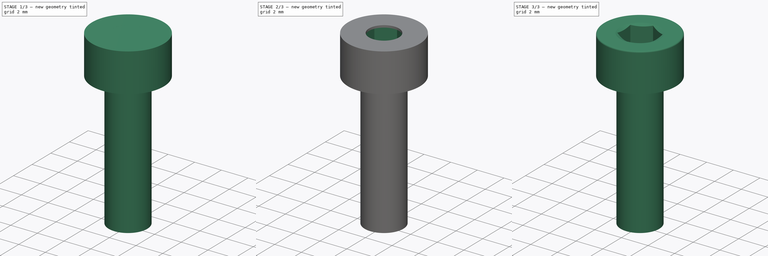
[diagram: build sequence overview — one tinted view per stage of 3, left to right]
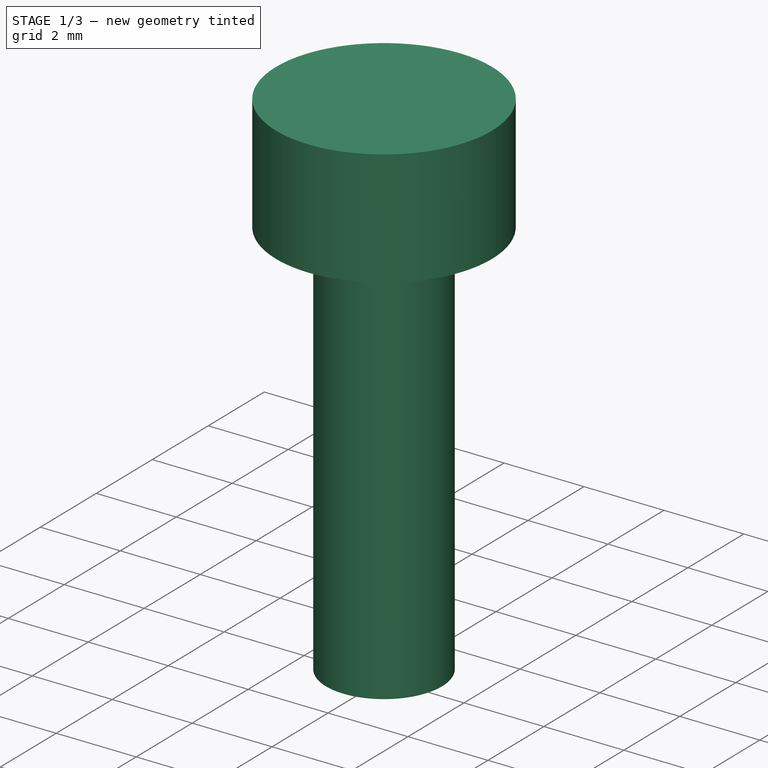
[diagram: stage 1 of 3 — iso view after this stage's code; geometry added in this stage tinted green]
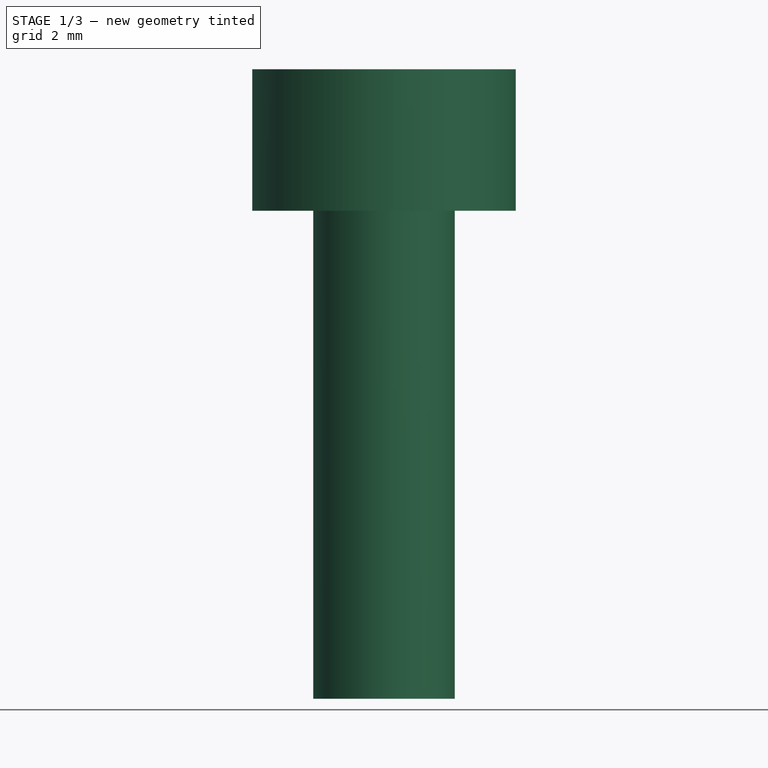
[diagram: stage 1 of 3 — front view after this stage's code; geometry added in this stage tinted green]
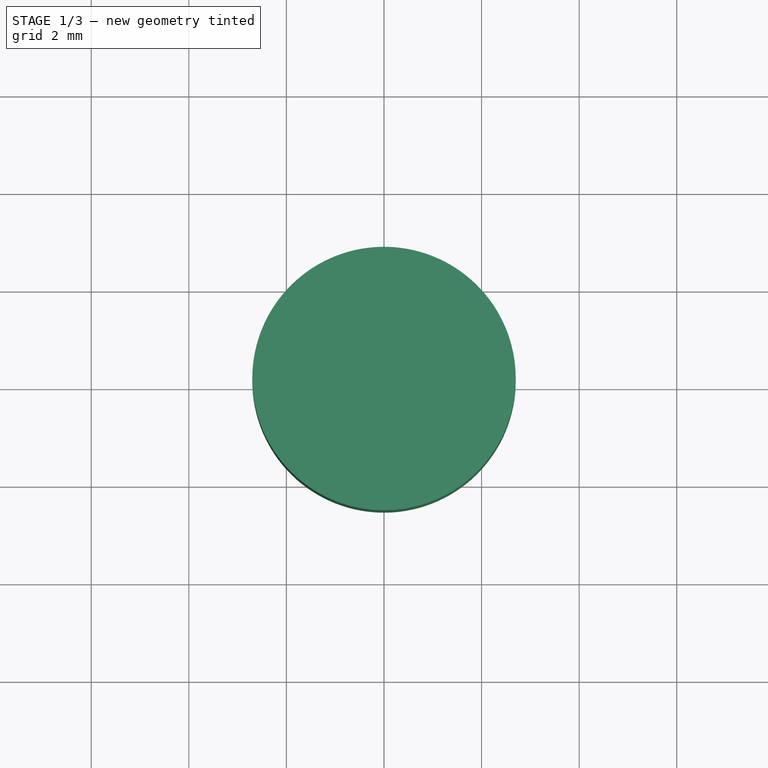
[diagram: stage 1 of 3 — top view after this stage's code; geometry added in this stage tinted green]
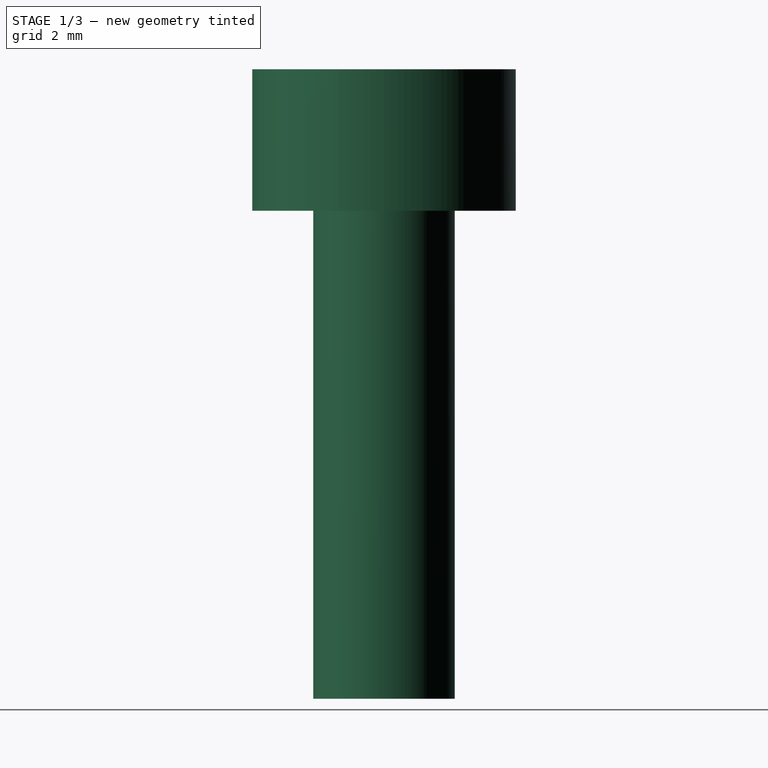
[diagram: stage 1 of 3 — right view after this stage's code; geometry added in this stage tinted green]
FCSTD DOCUMENT  (FreeCAD 0.14R3702 (Git))
Label: M3x10-cylinder-hex-head
License: CC-BY 3.0
LicenseURL: http://creativecommons.org/licenses/by/3.0/
objects: Sketcher::SketchObject×3, PartDesign::Revolution×2, PartDesign::Pocket×1, Part::Cut×1, Part::Fillet×1, Part::Feature×1
note: 12 computed .brp shape members not serialized (recipe doc carries the construction recipe); baked Part::Feature solids carry a one-line shape summary decoded from their .brp

FEATURE [Sketcher::SketchObject] Sketch  label="bolt-body-sketch"
  Placement = pos=(0,0,0) rot=(1,0,0;1.5708rad)
  sketch-geometry (6):
    g0: LineSegment StartX=0 StartY=0 StartZ=0 EndX=1.45 EndY=0 EndZ=0
    g1: LineSegment StartX=1.45 StartY=0 StartZ=0 EndX=1.45 EndY=10 EndZ=0
    g2: LineSegment StartX=1.45 StartY=10 StartZ=0 EndX=2.7 EndY=10 EndZ=0
    g3: LineSegment StartX=2.7 StartY=10 StartZ=0 EndX=2.7 EndY=12.9 EndZ=0
    g4: LineSegment StartX=2.7 StartY=12.9 StartZ=0 EndX=0 EndY=12.9 EndZ=0
    g5: LineSegment StartX=0 StartY=12.9 StartZ=0 EndX=0 EndY=0 EndZ=0
  constraints (17):
    c: Horizontal(g0)
    c: Coincident(g0,g1)
    c: Vertical(g1)
    c: Coincident(g1,g2)
    c: Horizontal(g2)
    c: Coincident(g2,g3)
    c: Vertical(g3)
    c: Coincident(g3,g4)
    c: Horizontal(g4)
    c: Coincident(g4,g5)
    c: Coincident(g5,g0)
    c: Vertical(g5)
    c: Coincident(g0,g-1)
    c: DistanceY(g5) = -12.9
    c: DistanceY(g3) = 2.9
    c: DistanceX(g0) = 1.45
    c: DistanceX(g4) = -2.7
FEATURE [PartDesign::Revolution] Revolution  label="bolt-body"
  Angle = 360
  Axis = (0,0,1)
  Base = (0,0,0)
  Placement = pos=(0,0,0) rot=(1,0,0;1.5708rad)
  ReferenceAxis = -> Sketch [V_Axis]
  Reversed = true
  Sketch = -> Sketch
FEATURE [Sketcher::SketchObject] Sketch002
  Placement = pos=(0,0,0) rot=(0.57735,0.57735,0.57735;2.0944rad)
  sketch-geometry (3):
    g0: LineSegment StartX=1.12763 StartY=12.7371 StartZ=0 EndX=1.50189 EndY=12.9005 EndZ=0
    g1: LineSegment StartX=1.50189 StartY=12.9005 StartZ=0 EndX=1.12763 EndY=12.9005 EndZ=0
    g2: LineSegment StartX=1.12763 StartY=12.9005 StartZ=0 EndX=1.12763 EndY=12.7371 EndZ=0
  constraints (5):
    c: Coincident(g1,g0)
    c: Horizontal(g1)
    c: Coincident(g2,g1)
    c: Vertical(g2)
    c: Coincident(g0,g2)
FEATURE [PartDesign::Revolution] Revolution001
  Angle = 360
  Axis = (0,0,1)
  Base = (0,0,0)
  Placement = pos=(0,0,0) rot=(0.57735,0.57735,0.57735;2.0944rad)
  ReferenceAxis = -> Sketch002 [V_Axis]
  Reversed = true
  Sketch = -> Sketch002
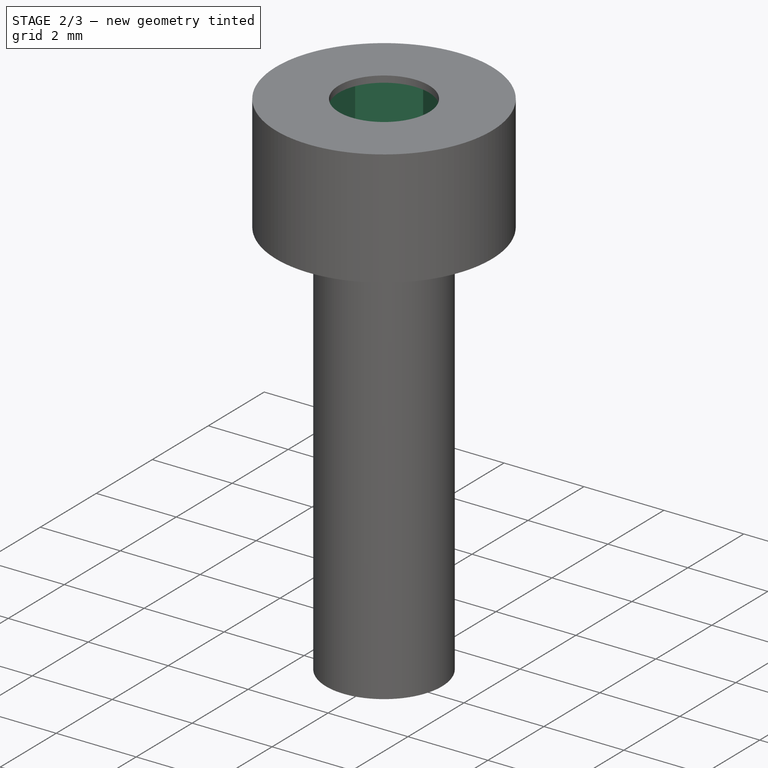
[diagram: stage 2 of 3 — iso view after this stage's code; geometry added in this stage tinted green]
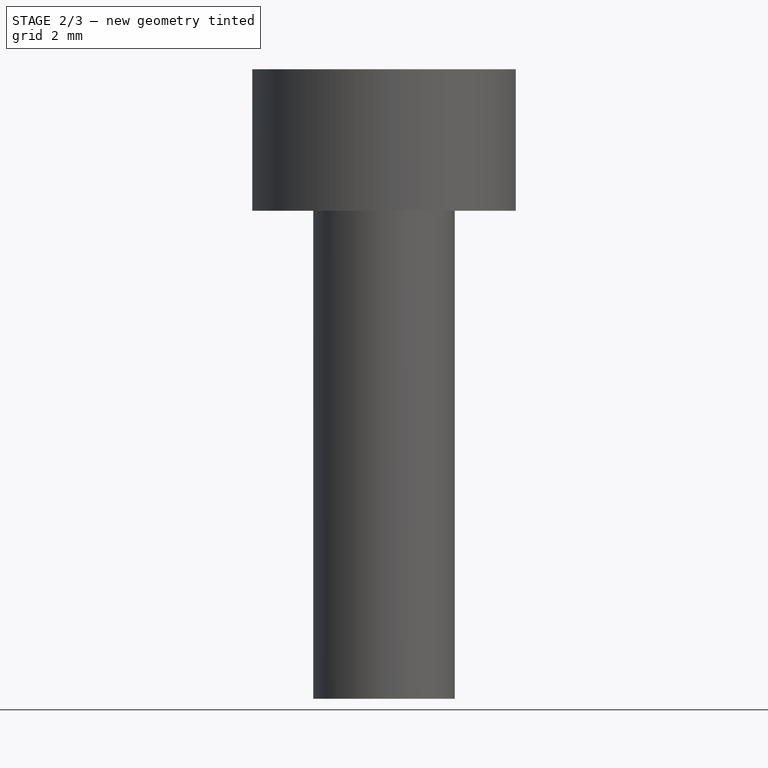
[diagram: stage 2 of 3 — front view after this stage's code; geometry added in this stage tinted green]
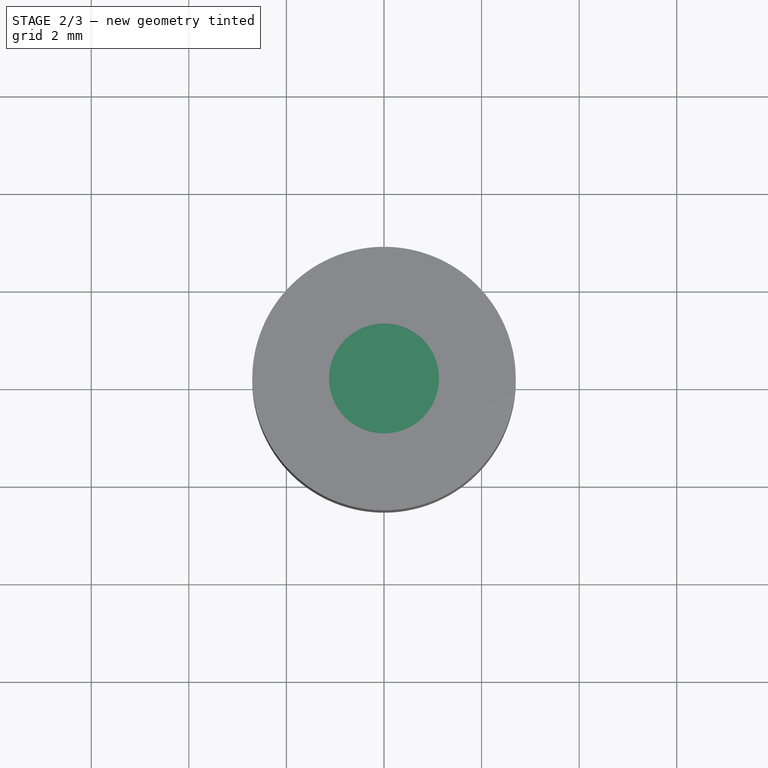
[diagram: stage 2 of 3 — top view after this stage's code; geometry added in this stage tinted green]
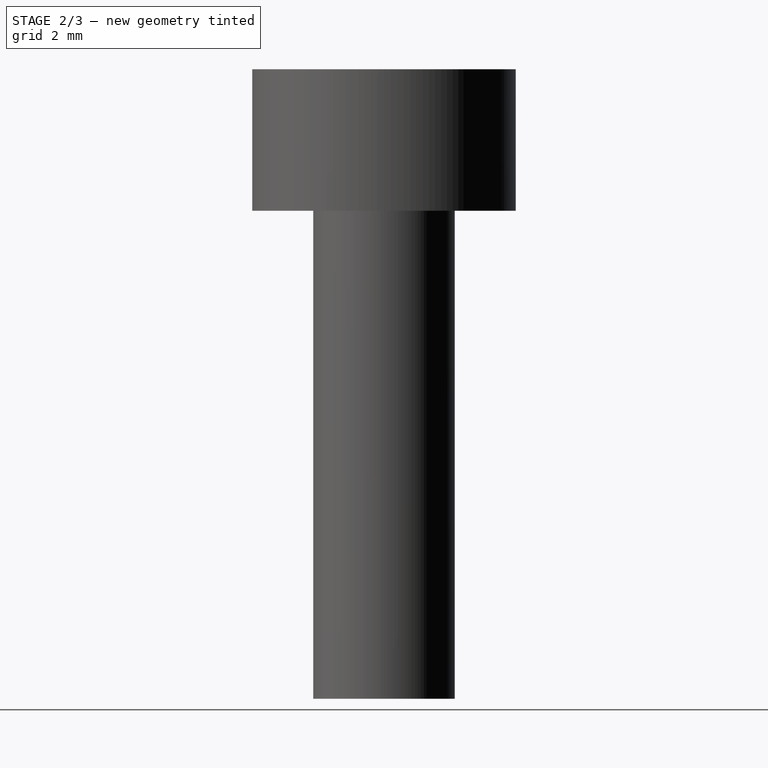
[diagram: stage 2 of 3 — right view after this stage's code; geometry added in this stage tinted green]
FEATURE [Sketcher::SketchObject] Sketch001  label="hex-sketch"
  Placement = pos=(0,0,12.9) rot=(0,0,1;3.14159rad)
  Support = -> Revolution [Face5]
  sketch-geometry (7):
    g0: LineSegment StartX=-1.21244 StartY=0.7 StartZ=0 EndX=-1.21244 EndY=-0.7 EndZ=0
    g1: LineSegment StartX=-1.21244 StartY=0.7 StartZ=0 EndX=0 EndY=1.4 EndZ=0
    g2: LineSegment StartX=-1.21244 StartY=-0.7 StartZ=0 EndX=0 EndY=-1.4 EndZ=0
    g3: LineSegment [constr] StartX=-1.21244 StartY=0.7 StartZ=0 EndX=0 EndY=0 EndZ=0
    g4: LineSegment StartX=0 StartY=1.4 StartZ=0 EndX=1.21244 EndY=0.7 EndZ=0
    g5: LineSegment StartX=1.21244 StartY=0.7 StartZ=0 EndX=1.21244 EndY=-0.7 EndZ=0
    g6: LineSegment StartX=1.21244 StartY=-0.7 StartZ=0 EndX=0 EndY=-1.4 EndZ=0
  constraints (18):
    c: PointOnObject(g1,g-2)
    c: Coincident(g0,g1)
    c: Coincident(g0,g2)
    c: PointOnObject(g2,g-2)
    c: Symmetric(g0,g0,g-1)
    c: Symmetric(g1,g2,g-1)
    c: Coincident(g3,g-1)
    c: Coincident(g3,g0)
    c: Angle(g-2,g3) = 1.0472
    c: Equal(g0,g1)
    c: Distance(g3) = 1.4
    c: Coincident(g4,g5)
    c: Vertical(g5)
    c: Coincident(g5,g6)
    c: Coincident(g4,g1)
    c: Coincident(g2,g6)
    c: Symmetric(g4,g0,g-2)
    c: Symmetric(g5,g0,g-2)
FEATURE [PartDesign::Pocket] Pocket  label="hex"
  Length = 1.8
  Placement = pos=(0,0,0) rot=(1,0,0;1.5708rad)
  Sketch = -> Sketch001
  Type = 0
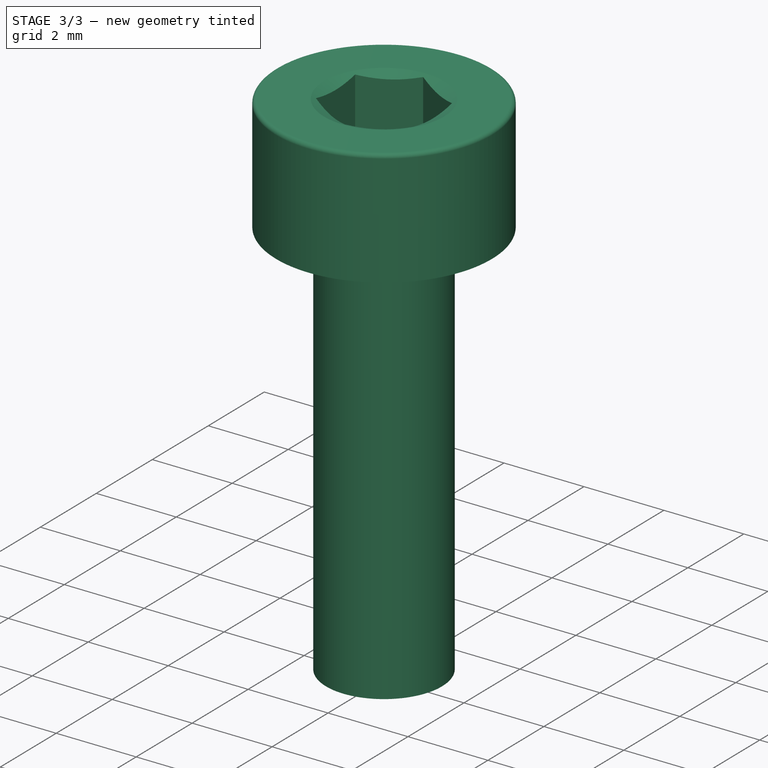
[diagram: stage 3 of 3 — iso view after this stage's code; geometry added in this stage tinted green]
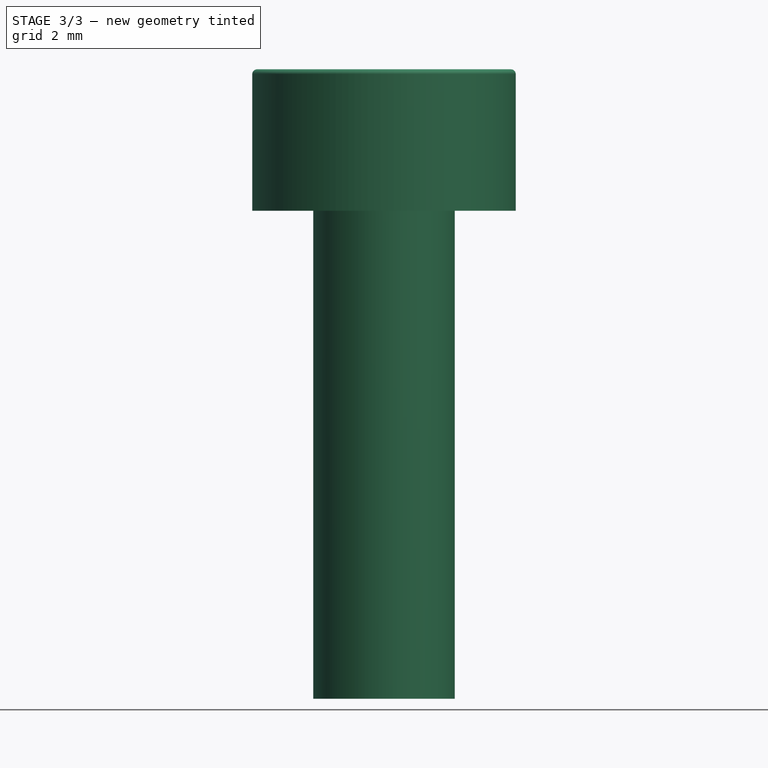
[diagram: stage 3 of 3 — front view after this stage's code; geometry added in this stage tinted green]
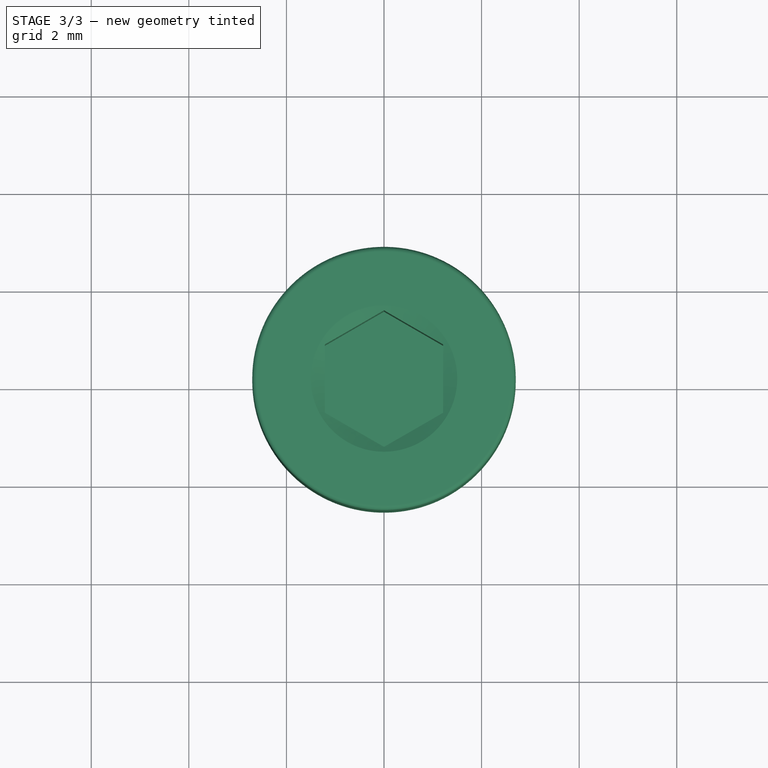
[diagram: stage 3 of 3 — top view after this stage's code; geometry added in this stage tinted green]
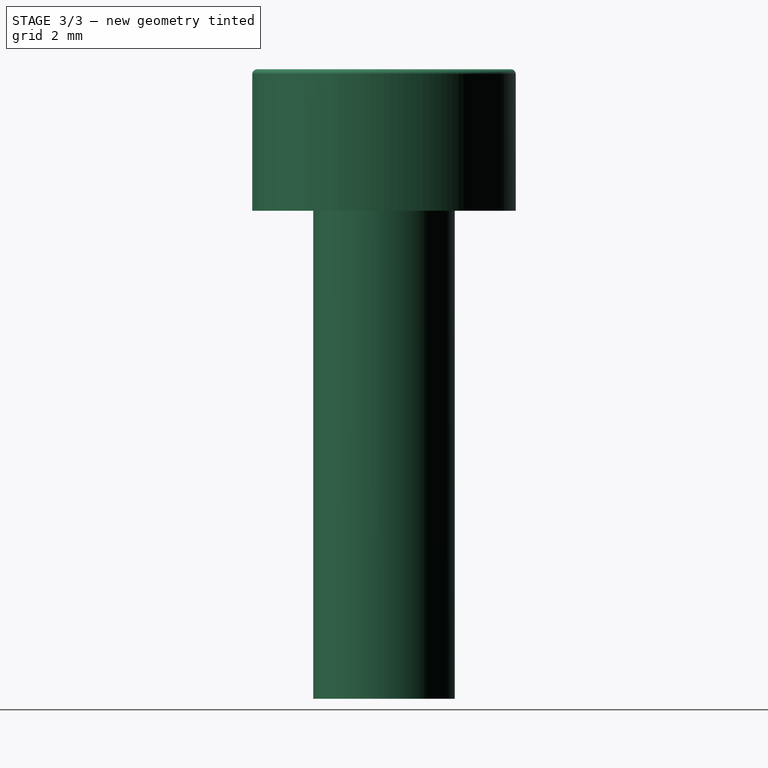
[diagram: stage 3 of 3 — right view after this stage's code; geometry added in this stage tinted green]
FEATURE [Part::Cut] Cut  label="bolt-1"
  Base = -> Pocket
  Tool = -> Revolution001
FEATURE [Part::Fillet] Fillet  label="bolt-2"
  Base = -> Cut
  Edges = 1 edges r=0.1: [Edge5]
FEATURE [Part::Feature] Fillet001  label="M3x10-cyl-hex-bolt-final"
  shape: bbox 5.845 x 5.845 x 12.9 mm, 14 faces (baked)
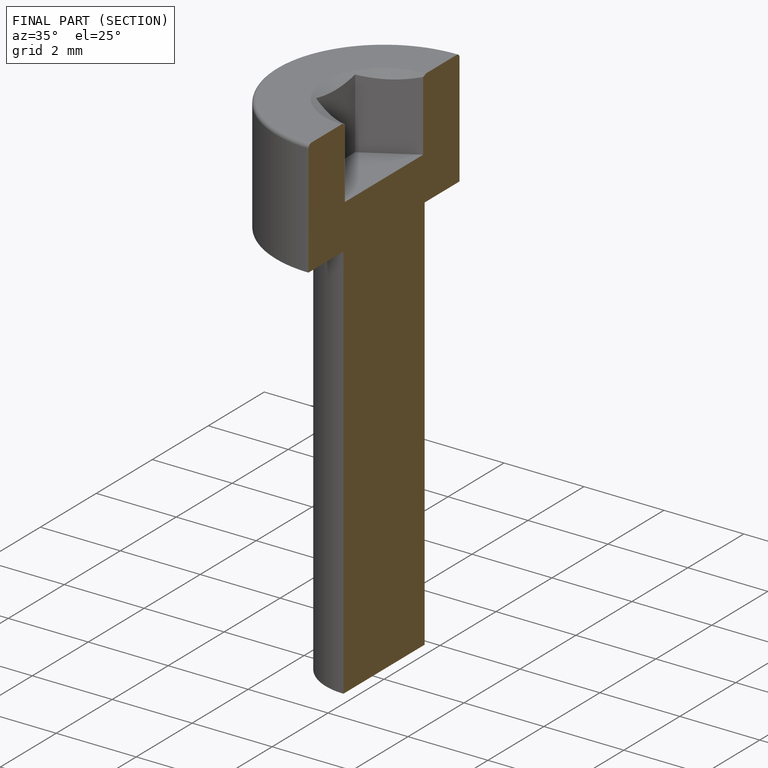
[diagram: finished part — half-section view (interior)]
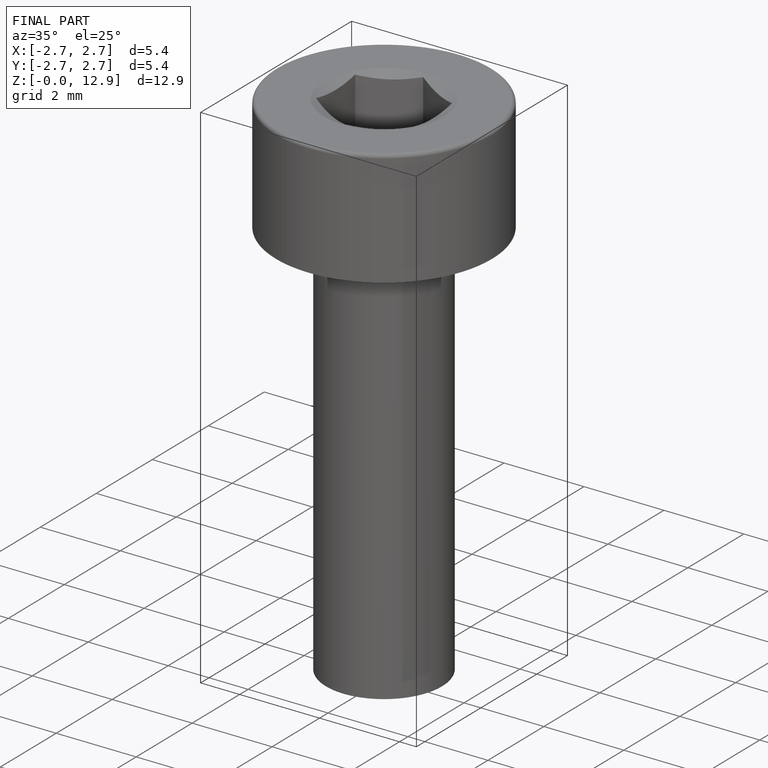
[diagram: finished part — iso view with bounding-box wireframe]
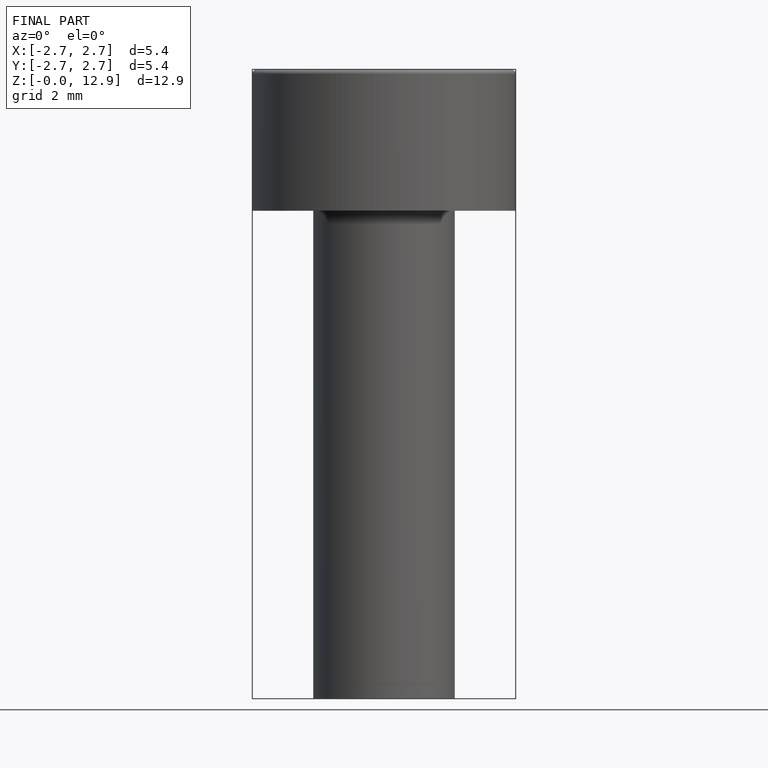
[diagram: finished part — front view with bounding-box wireframe]
